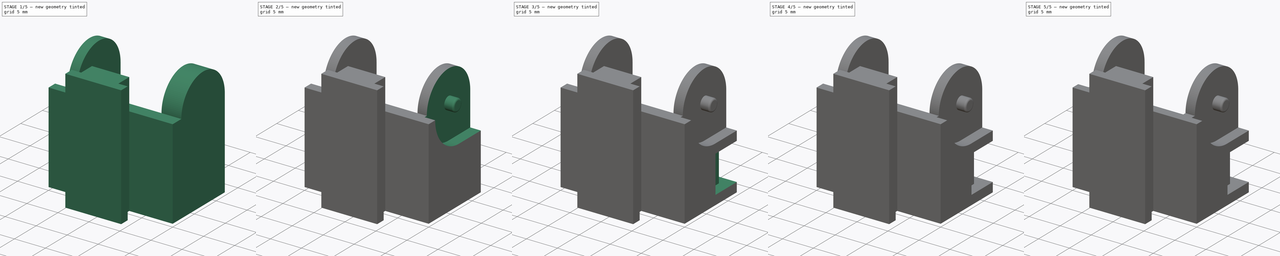
[diagram: build sequence overview — one tinted view per stage of 5, left to right]
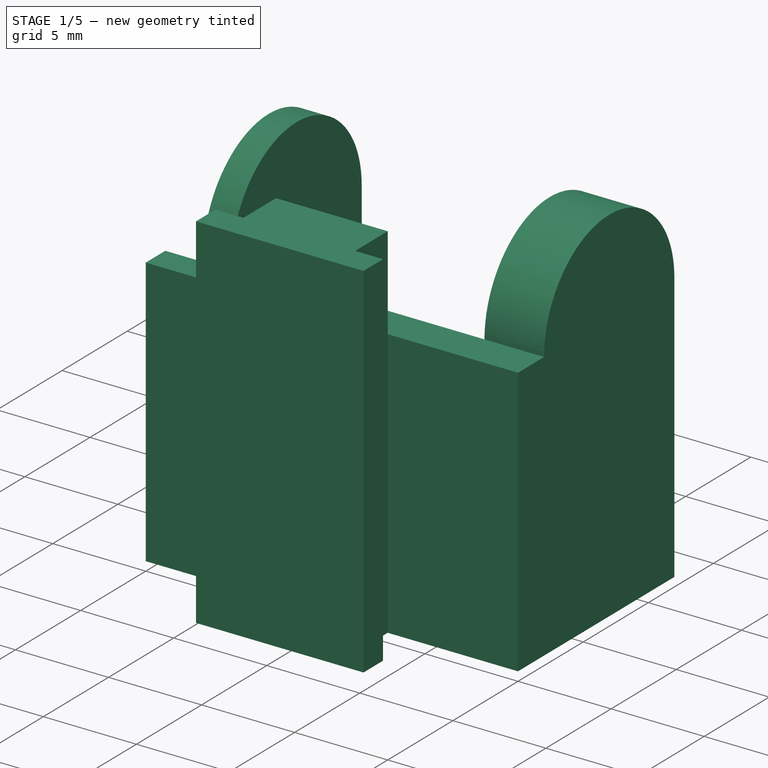
[diagram: stage 1 of 5 — iso view after this stage's code; geometry added in this stage tinted green]
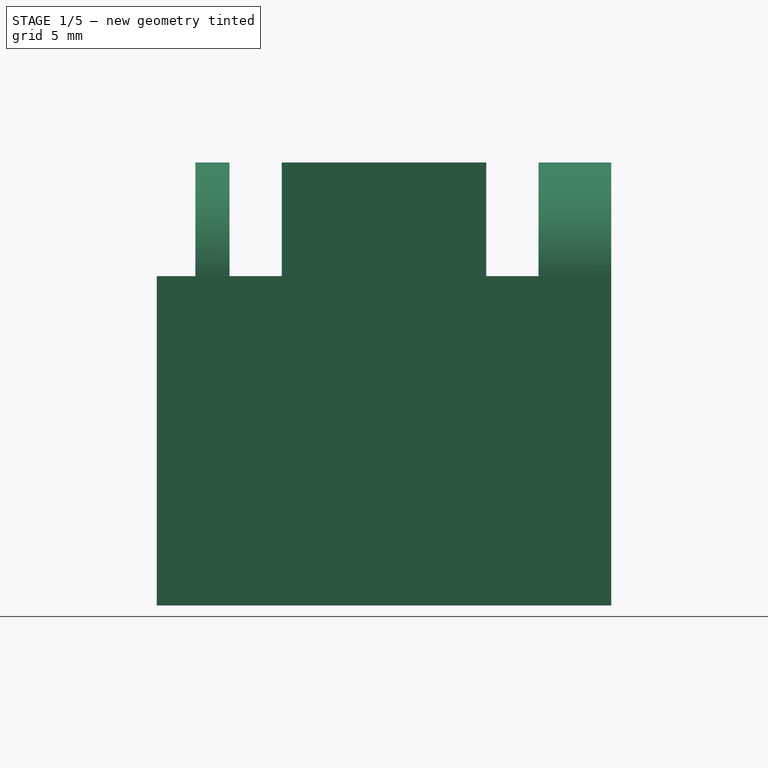
[diagram: stage 1 of 5 — front view after this stage's code; geometry added in this stage tinted green]
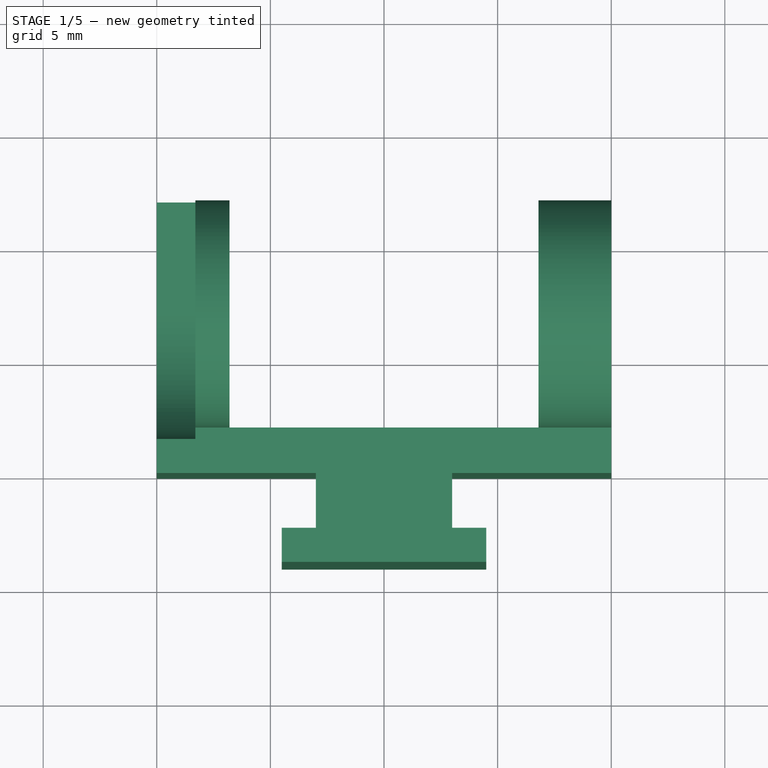
[diagram: stage 1 of 5 — top view after this stage's code; geometry added in this stage tinted green]
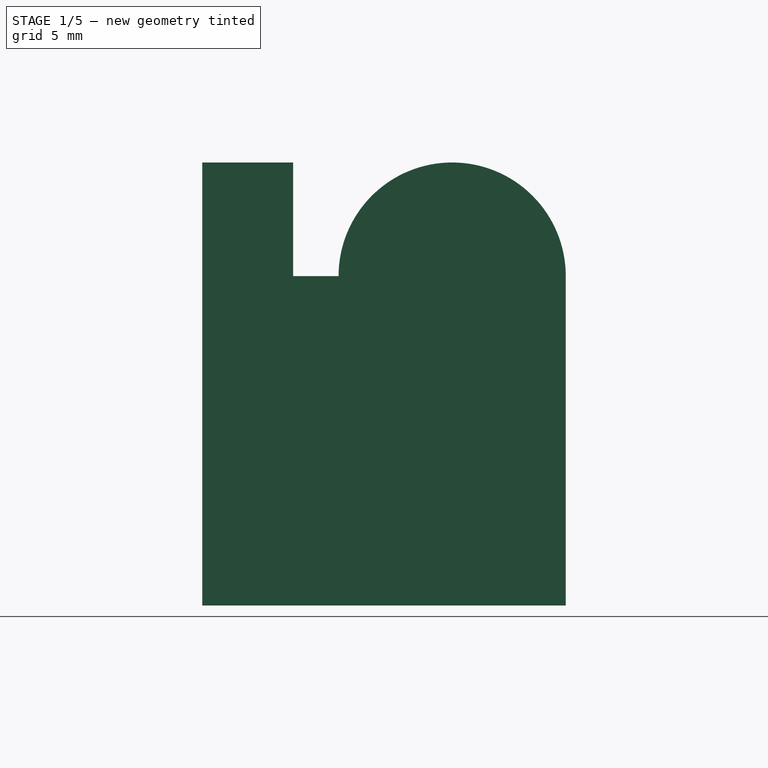
[diagram: stage 1 of 5 — right view after this stage's code; geometry added in this stage tinted green]
FCSTD DOCUMENT  (FreeCAD 0.17R13541 (Git))
Label: CableCareerNozzleFooter
License: All rights reserved
LicenseURL: http://en.wikipedia.org/wiki/All_rights_reserved
objects: Sketcher::SketchObject×11, PartDesign::Fillet×9, PartDesign::Pocket×8, PartDesign::Pad×3, PartDesign::Body×1
note: 43 computed .brp shape members not serialized (recipe doc carries the construction recipe); baked Part::Feature solids carry a one-line shape summary decoded from their .brp

FEATURE [Sketcher::SketchObject] Sketch
  MapMode = 5
  Support = -> [XY_Plane]
  sketch-geometry (12):
    g0: LineSegment StartX=-3 StartY=0 StartZ=0 EndX=-3 EndY=-2.5 EndZ=0
    g1: LineSegment StartX=-3 StartY=-2.5 StartZ=0 EndX=-4.5 EndY=-2.5 EndZ=0
    g2: LineSegment StartX=-4.5 StartY=-2.5 StartZ=0 EndX=-4.5 EndY=-4 EndZ=0
    g3: LineSegment StartX=-4.5 StartY=-4 StartZ=0 EndX=4.5 EndY=-4 EndZ=0
    g4: LineSegment StartX=4.5 StartY=-4 StartZ=0 EndX=4.5 EndY=-2.5 EndZ=0
    g5: LineSegment StartX=4.5 StartY=-2.5 StartZ=0 EndX=3 EndY=-2.5 EndZ=0
    g6: LineSegment StartX=3 StartY=-2.5 StartZ=0 EndX=3 EndY=0 EndZ=0
    g7: LineSegment StartX=3 StartY=0 StartZ=0 EndX=10 EndY=0 EndZ=0
    g8: LineSegment StartX=10 StartY=0 StartZ=0 EndX=10 EndY=12 EndZ=0
    g9: LineSegment StartX=10 StartY=12 StartZ=0 EndX=-10 EndY=12 EndZ=0
    g10: LineSegment StartX=-10 StartY=12 StartZ=0 EndX=-10 EndY=0 EndZ=0
    g11: LineSegment StartX=-10 StartY=0 StartZ=0 EndX=-3 EndY=0 EndZ=0
  constraints (36):
    c: Coincident(g0,g1)
    c: Coincident(g1,g2)
    c: Coincident(g2,g3)
    c: Coincident(g3,g4)
    c: Coincident(g4,g5)
    c: Coincident(g5,g6)
    c: Coincident(g6,g7)
    c: Coincident(g7,g8)
    c: Coincident(g8,g9)
    c: Coincident(g9,g10)
    c: Coincident(g10,g11)
    c: Coincident(g11,g0)
    c: Vertical(g10)
    c: Vertical(g8)
    c: Vertical(g6)
    c: Vertical(g0)
    c: Vertical(g2)
    c: Vertical(g4)
    c: Horizontal(g9)
    c: Horizontal(g11)
    c: Horizontal(g1)
    c: Horizontal(g3)
    c: Horizontal(g5)
    c: Horizontal(g7)
    c: PointOnObject(g0,g-1)
    c: PointOnObject(g6,g-1)
    c: DistanceX(g0,g6) = 6
    c: DistanceX(g11,g11) = 7
    c: DistanceX(g7,g7) = 7
    c: DistanceY(g10,g10) = 12
    c: DistanceY(g0,g0) = 2.5
    c: DistanceY(g6,g6) = 2.5
    c: DistanceX(g1,g1) = 1.5
    c: DistanceX(g5,g5) = 1.5
    c: DistanceY(g4,g4) = 1.5
    c: DistanceX(g0,g-1) = 3
FEATURE [PartDesign::Pad] Pad
  Length = 19.5
  Length2 = 100
  Profile = -> Sketch
  Type = 0
FEATURE [Sketcher::SketchObject] Sketch001
  ExternalGeometry = -> [Pad]
  MapMode = 5
  Placement = pos=(0,12,0) rot=(0,0.707107,0.707107;3.14159rad)
  Support = -> [Pad]
  sketch-geometry (4):
    g0: LineSegment StartX=-6.8 StartY=19.5 StartZ=0 EndX=6.8 EndY=19.5 EndZ=0
    g1: LineSegment StartX=6.8 StartY=19.5 StartZ=0 EndX=6.8 EndY=0 EndZ=0
    g2: LineSegment StartX=6.8 StartY=0 StartZ=0 EndX=-6.8 EndY=0 EndZ=0
    g3: LineSegment StartX=-6.8 StartY=0 StartZ=0 EndX=-6.8 EndY=19.5 EndZ=0
  constraints (12):
    c: Coincident(g0,g1)
    c: Coincident(g1,g2)
    c: Coincident(g2,g3)
    c: Coincident(g3,g0)
    c: Horizontal(g0)
    c: Horizontal(g2)
    c: Vertical(g1)
    c: Vertical(g3)
    c: PointOnObject(g0,g-3)
    c: PointOnObject(g1,g-4)
    c: DistanceX(g-3,g0) = 3.2
    c: DistanceX(g0,g-3) = 3.2
FEATURE [PartDesign::Pocket] Pocket
  BaseFeature = -> Pad
  Length = 10
  Length2 = 100
  Profile = -> Sketch001
  Type = 0
FEATURE [Sketcher::SketchObject] Sketch002
  ExternalGeometry = -> [Pocket]
  MapMode = 5
  Placement = pos=(-10,0,0) rot=(0.57735,-0.57735,-0.57735;2.0944rad)
  Support = -> [Pocket]
  sketch-geometry (5):
    g0: ArcOfCircle CenterX=-7 CenterY=14.5 CenterZ=0 NormalX=0 NormalY=0 NormalZ=1 AngleXU=0 Radius=5 StartAngle=4.74424e-06 EndAngle=3.1416
    g1: LineSegment StartX=-12 StartY=14.5 StartZ=0 EndX=-12 EndY=20.5 EndZ=0
    g2: LineSegment StartX=-12 StartY=20.5 StartZ=0 EndX=0 EndY=20.5 EndZ=0
    g3: LineSegment StartX=0 StartY=20.5 StartZ=0 EndX=0 EndY=14.5 EndZ=0
    g4: LineSegment StartX=0 StartY=14.5 StartZ=0 EndX=-2 EndY=14.5 EndZ=0
  constraints (16):
    c: DistanceX(g-4,g0) = 5
    c: DistanceY(g0,g-4) = 5
    c: Tangent(g0,g-3)
    c: PointOnObject(g0,g-4)
    c: Angle(g0) = 3.14159
    c: Coincident(g1,g2)
    c: Coincident(g2,g3)
    c: Coincident(g3,g4)
    c: Coincident(g0,g4)
    c: Coincident(g1,g0)
    c: Vertical(g1)
    c: Vertical(g3)
    c: Horizontal(g4)
    c: Horizontal(g2)
    c: DistanceY(g-6,g2) = 1
    c: PointOnObject(g3,g-2)
FEATURE [PartDesign::Pocket] Pocket001
  BaseFeature = -> Pocket
  Length = 20
  Length2 = 100
  Profile = -> Sketch002
  Type = 0
FEATURE [Sketcher::SketchObject] Sketch003
  ExternalGeometry = -> [Pocket001]
  MapMode = 5
  Placement = pos=(-10,0,0) rot=(0.57735,-0.57735,-0.57735;2.0944rad)
  Support = -> [Pocket001]
  sketch-geometry (3):
    g0: ArcOfCircle CenterX=-7 CenterY=14.5 CenterZ=0 NormalX=0 NormalY=0 NormalZ=1 AngleXU=0 Radius=5.5 StartAngle=4.71239 EndAngle=9.42478
    g1: LineSegment StartX=-12.5 StartY=14.5 StartZ=0 EndX=-12.5 EndY=9 EndZ=0
    g2: LineSegment StartX=-12.5 StartY=9 StartZ=0 EndX=-6.99998 EndY=9 EndZ=0
  constraints (9):
    c: Coincident(g0,g-3)
    c: Radius(g0) = 5.5
    c: DistanceY(g0,g-3) = 0
    c: Angle(g0) = 4.71239
    c: Coincident(g1,g2)
    c: Coincident(g2,g0)
    c: Coincident(g1,g0)
    c: Vertical(g1)
    c: Horizontal(g2)
FEATURE [PartDesign::Pocket] Pocket002
  BaseFeature = -> Pocket001
  Length = 1.7
  Length2 = 100
  Profile = -> Sketch003
  Type = 0
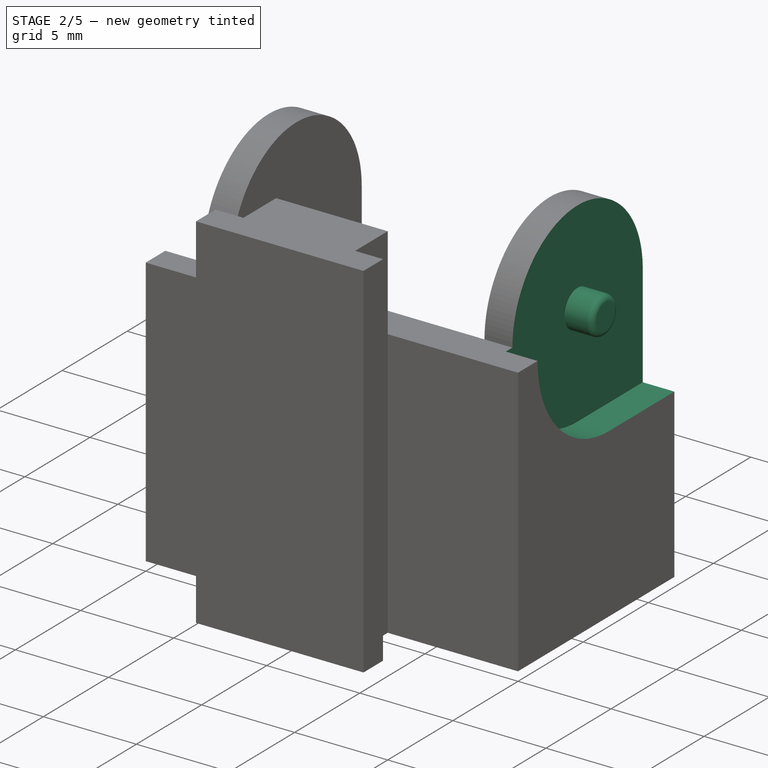
[diagram: stage 2 of 5 — iso view after this stage's code; geometry added in this stage tinted green]
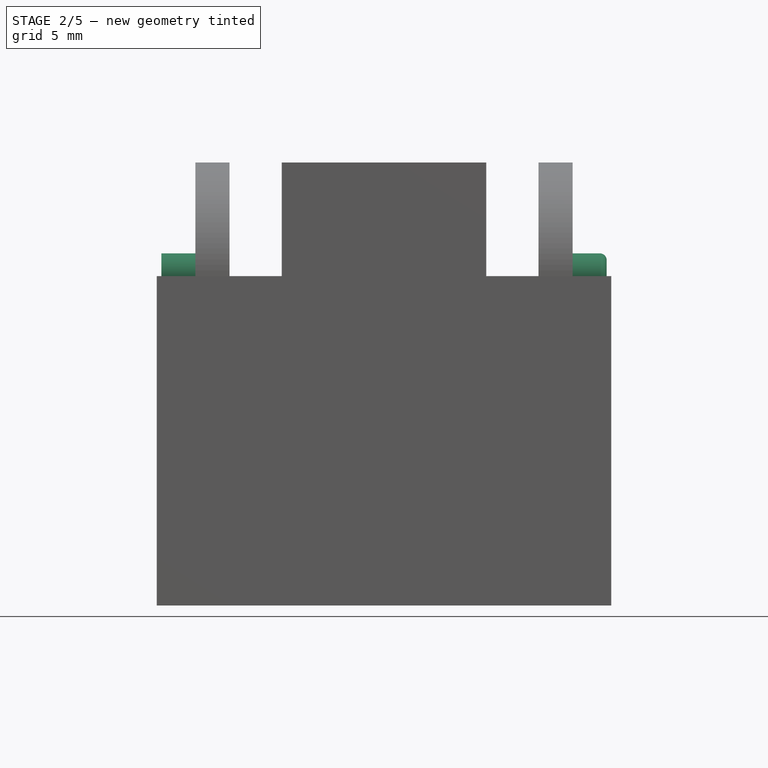
[diagram: stage 2 of 5 — front view after this stage's code; geometry added in this stage tinted green]
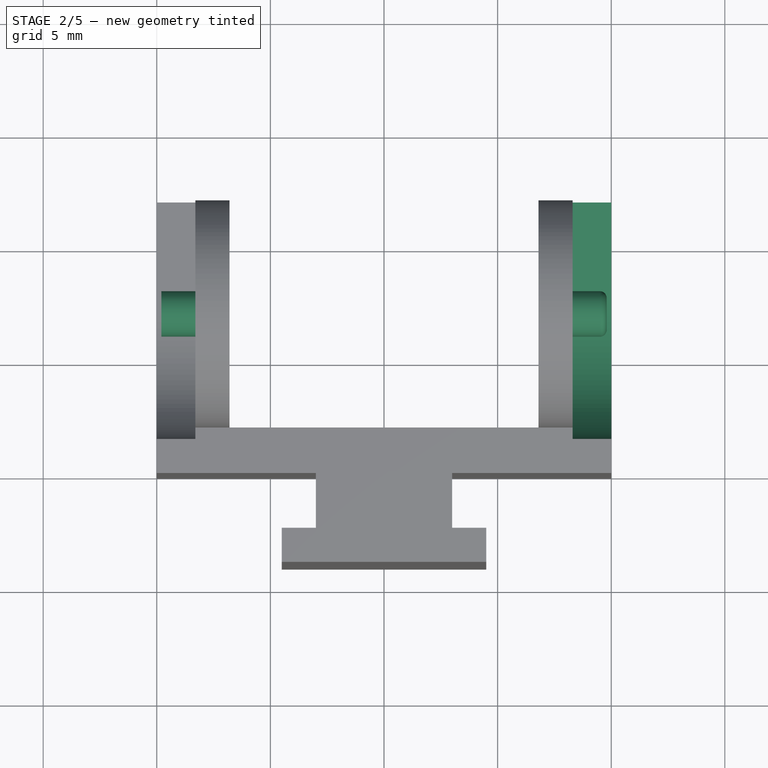
[diagram: stage 2 of 5 — top view after this stage's code; geometry added in this stage tinted green]
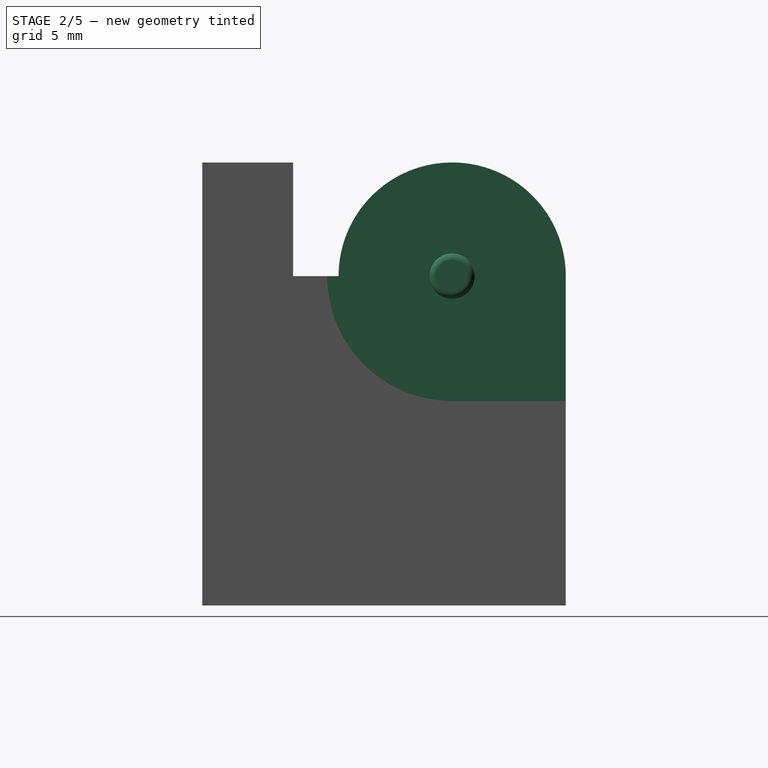
[diagram: stage 2 of 5 — right view after this stage's code; geometry added in this stage tinted green]
FEATURE [Sketcher::SketchObject] Sketch004
  ExternalGeometry = -> [Pocket002]
  MapMode = 5
  Placement = pos=(10,0,0) rot=(0.57735,0.57735,0.57735;2.0944rad)
  Support = -> [Pocket002]
  sketch-geometry (3):
    g0: ArcOfCircle CenterX=7 CenterY=14.5 CenterZ=0 NormalX=0 NormalY=0 NormalZ=1 AngleXU=0 Radius=5.5 StartAngle=6.28318 EndAngle=10.9956
    g1: LineSegment StartX=12.5 StartY=14.5 StartZ=0 EndX=12.5 EndY=9 EndZ=0
    g2: LineSegment StartX=12.5 StartY=9 StartZ=0 EndX=6.99998 EndY=9 EndZ=0
  constraints (9):
    c: Coincident(g0,g-3)
    c: Radius(g0) = 5.5
    c: Angle(g0) = 4.71239
    c: DistanceY(g0,g-4) = 0
    c: Coincident(g1,g2)
    c: Coincident(g2,g0)
    c: Coincident(g1,g0)
    c: Vertical(g1)
    c: Horizontal(g2)
FEATURE [PartDesign::Pocket] Pocket003
  BaseFeature = -> Pocket002
  Length = 1.7
  Length2 = 100
  Profile = -> Sketch004
  Type = 0
FEATURE [Sketcher::SketchObject] Sketch005
  ExternalGeometry = -> [Pocket003]
  MapMode = 5
  Placement = pos=(8.3,0,0) rot=(0.57735,0.57735,0.57735;2.0944rad)
  Support = -> [Pocket003]
  sketch-geometry (1):
    g0: Circle CenterX=7 CenterY=14.5 CenterZ=0 NormalX=0 NormalY=0 NormalZ=1 AngleXU=0 Radius=1
  constraints (2):
    c: Coincident(g0,g-3)
    c: Radius(g0) = 1
FEATURE [PartDesign::Pad] Pad001
  BaseFeature = -> Pocket003
  Length = 1.5
  Length2 = 100
  Profile = -> Sketch005
  Type = 0
FEATURE [PartDesign::Fillet] Fillet
  Base = -> Pad001 [Edge83]
  BaseFeature = -> Pad001
  Radius = 0.3
FEATURE [Sketcher::SketchObject] Sketch006
  ExternalGeometry = -> [Fillet]
  MapMode = 5
  Placement = pos=(-8.3,0,0) rot=(-0.57735,0.57735,0.57735;4.18879rad)
  Support = -> [Fillet]
  sketch-geometry (1):
    g0: Circle CenterX=-7 CenterY=14.5 CenterZ=0 NormalX=0 NormalY=0 NormalZ=1 AngleXU=0 Radius=1
  constraints (2):
    c: Coincident(g0,g-3)
    c: Radius(g0) = 1
FEATURE [PartDesign::Pad] Pad002
  BaseFeature = -> Fillet
  Length = 1.5
  Length2 = 100
  Profile = -> Sketch006
  Type = 0
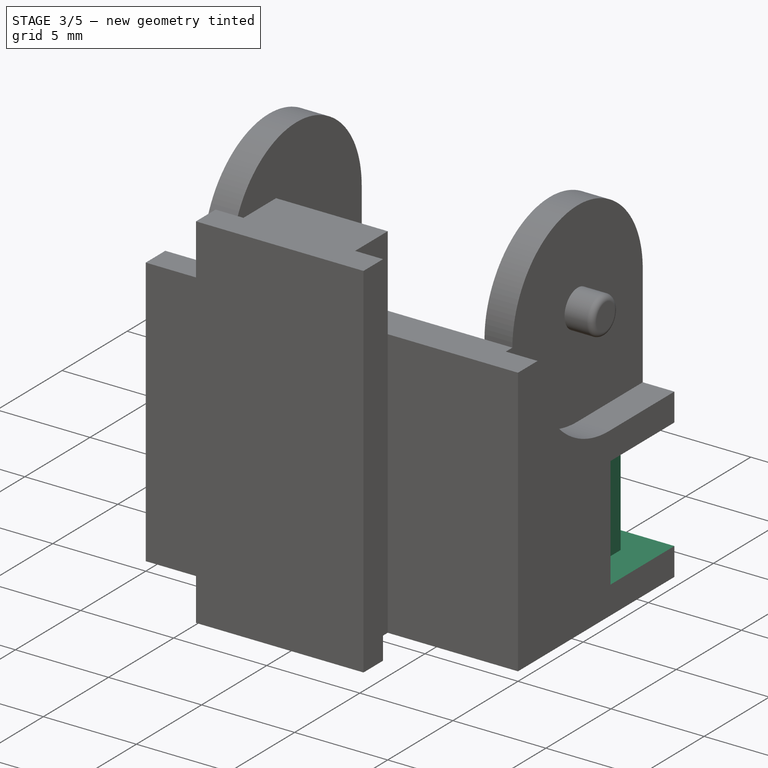
[diagram: stage 3 of 5 — iso view after this stage's code; geometry added in this stage tinted green]
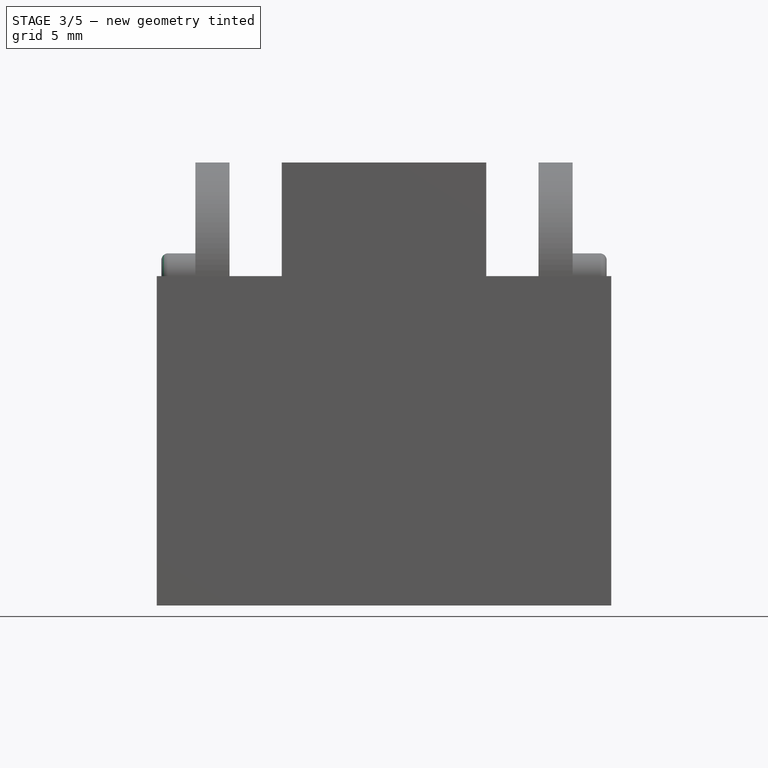
[diagram: stage 3 of 5 — front view after this stage's code; geometry added in this stage tinted green]
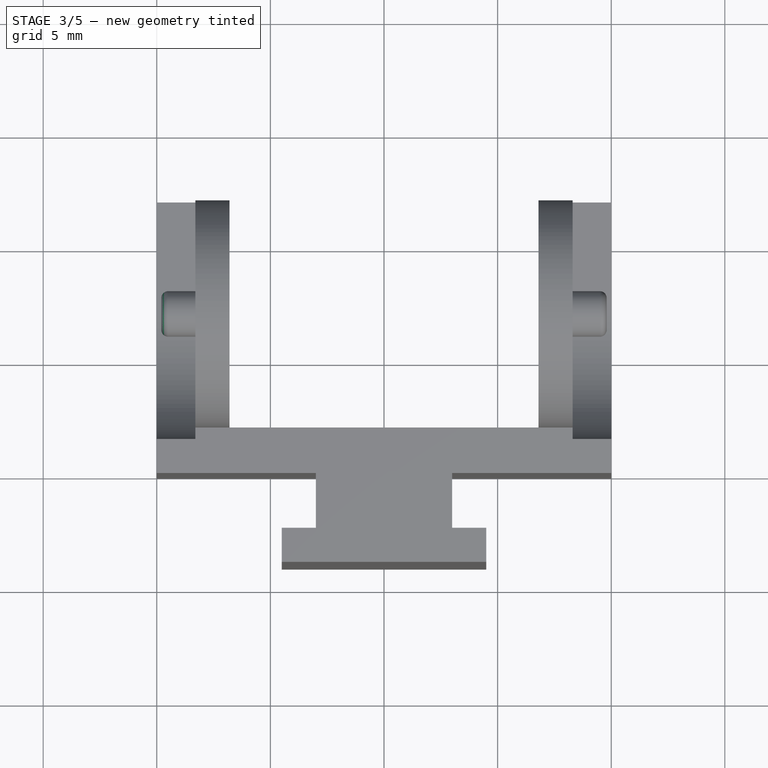
[diagram: stage 3 of 5 — top view after this stage's code; geometry added in this stage tinted green]
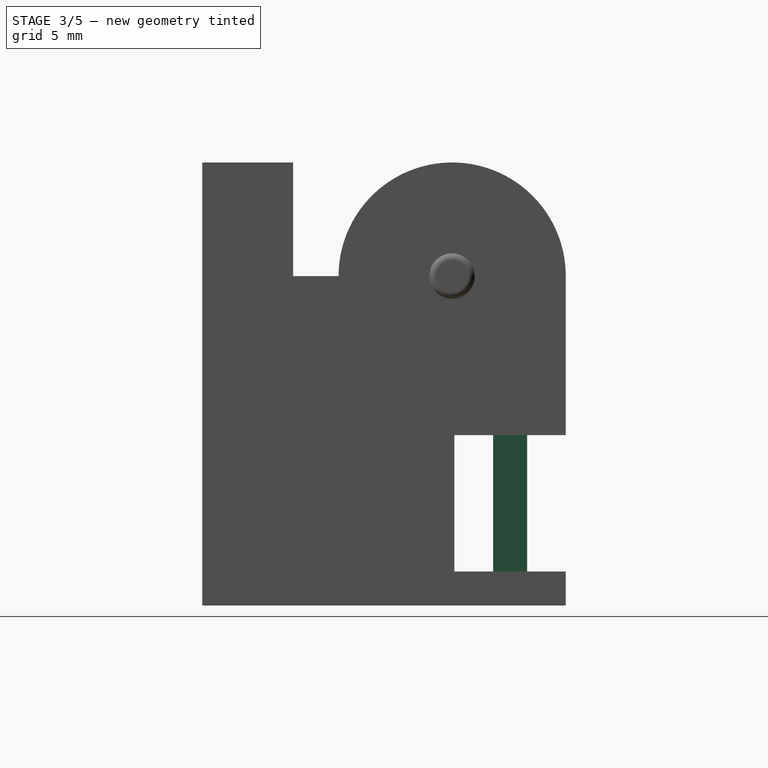
[diagram: stage 3 of 5 — right view after this stage's code; geometry added in this stage tinted green]
FEATURE [PartDesign::Fillet] Fillet001
  Base = -> Pad002 [Edge75]
  BaseFeature = -> Pad002
  Radius = 0.3
FEATURE [Sketcher::SketchObject] Sketch007
  ExternalGeometry = -> [Fillet001]
  MapMode = 5
  Placement = pos=(10,0,0) rot=(0.57735,0.57735,0.57735;2.0944rad)
  Support = -> [Fillet001]
  sketch-geometry (4):
    g0: LineSegment StartX=10.3 StartY=7.5 StartZ=0 EndX=12 EndY=7.5 EndZ=0
    g1: LineSegment StartX=12 StartY=7.5 StartZ=0 EndX=12 EndY=1.5 EndZ=0
    g2: LineSegment StartX=12 StartY=1.5 StartZ=0 EndX=10.3 EndY=1.5 EndZ=0
    g3: LineSegment StartX=10.3 StartY=1.5 StartZ=0 EndX=10.3 EndY=7.5 EndZ=0
  constraints (12):
    c: Coincident(g0,g1)
    c: Coincident(g1,g2)
    c: Coincident(g2,g3)
    c: Coincident(g3,g0)
    c: Horizontal(g0)
    c: Horizontal(g2)
    c: Vertical(g1)
    c: Vertical(g3)
    c: PointOnObject(g0,g-3)
    c: DistanceY(g0,g-3) = 1.5
    c: DistanceY(g-3,g1) = 1.5
    c: DistanceX(g2,g2) = 1.7
FEATURE [PartDesign::Pocket] Pocket004
  BaseFeature = -> Fillet001
  Length = 20
  Length2 = 100
  Profile = -> Sketch007
  Type = 0
FEATURE [Sketcher::SketchObject] Sketch008
  ExternalGeometry = -> [Pocket004]
  MapMode = 5
  Placement = pos=(10,0,0) rot=(0.57735,0.57735,0.57735;2.0944rad)
  Support = -> [Pocket004]
  sketch-geometry (4):
    g0: LineSegment StartX=7.1 StartY=7.5 StartZ=0 EndX=8.8 EndY=7.5 EndZ=0
    g1: LineSegment StartX=8.8 StartY=7.5 StartZ=0 EndX=8.8 EndY=1.5 EndZ=0
    g2: LineSegment StartX=8.8 StartY=1.5 StartZ=0 EndX=7.1 EndY=1.5 EndZ=0
    g3: LineSegment StartX=7.1 StartY=1.5 StartZ=0 EndX=7.1 EndY=7.5 EndZ=0
  constraints (12):
    c: Coincident(g0,g1)
    c: Coincident(g1,g2)
    c: Coincident(g2,g3)
    c: Coincident(g3,g0)
    c: Horizontal(g0)
    c: Horizontal(g2)
    c: Vertical(g1)
    c: Vertical(g3)
    c: DistanceX(g0,g-3) = 1.5
    c: DistanceY(g-3,g1) = 0
    c: DistanceY(g0,g-3) = 0
    c: DistanceX(g0,g0) = 1.7
FEATURE [PartDesign::Pocket] Pocket005
  BaseFeature = -> Pocket004
  Length = 20
  Length2 = 100
  Profile = -> Sketch008
  Type = 0
FEATURE [Sketcher::SketchObject] Sketch009
  ExternalGeometry = -> [Pocket005]
  MapMode = 5
  Placement = pos=(10,0,0) rot=(0.57735,0.57735,0.57735;2.0944rad)
  Support = -> [Pocket005]
  sketch-geometry (4):
    g0: LineSegment StartX=8.8 StartY=7.5 StartZ=0 EndX=10.3 EndY=7.5 EndZ=0
    g1: LineSegment StartX=10.3 StartY=7.5 StartZ=0 EndX=10.3 EndY=1.5 EndZ=0
    g2: LineSegment StartX=10.3 StartY=1.5 StartZ=0 EndX=8.8 EndY=1.5 EndZ=0
    g3: LineSegment StartX=8.8 StartY=1.5 StartZ=0 EndX=8.8 EndY=7.5 EndZ=0
  constraints (10):
    c: Coincident(g0,g1)
    c: Coincident(g1,g2)
    c: Coincident(g2,g3)
    c: Coincident(g3,g0)
    c: Horizontal(g0)
    c: Horizontal(g2)
    c: Vertical(g1)
    c: Vertical(g3)
    c: Coincident(g1,g-4)
    c: Coincident(g-3,g0)
FEATURE [PartDesign::Pocket] Pocket006
  BaseFeature = -> Pocket005
  Length = 1.7
  Length2 = 100
  Profile = -> Sketch009
  Type = 0
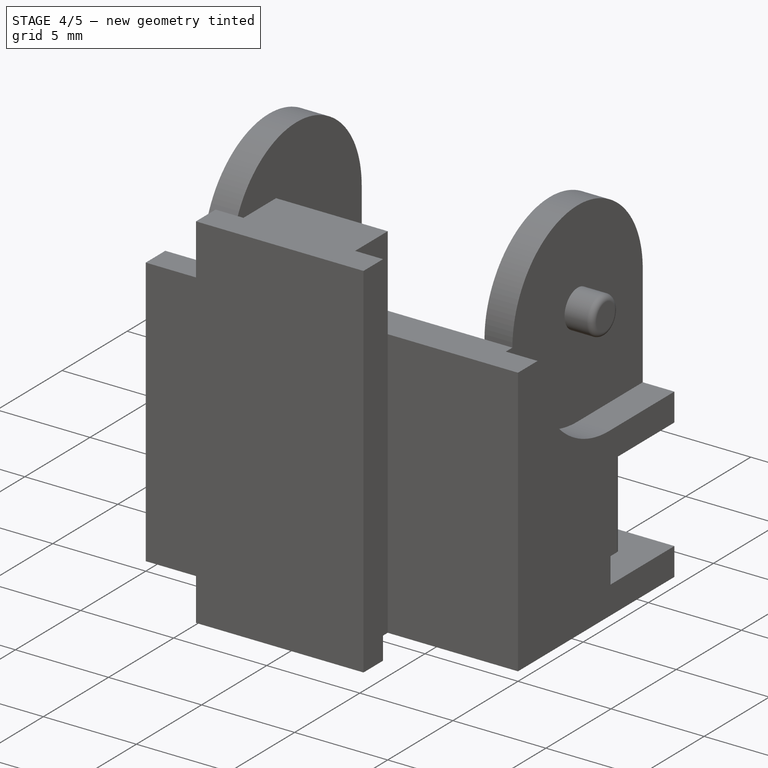
[diagram: stage 4 of 5 — iso view after this stage's code; geometry added in this stage tinted green]
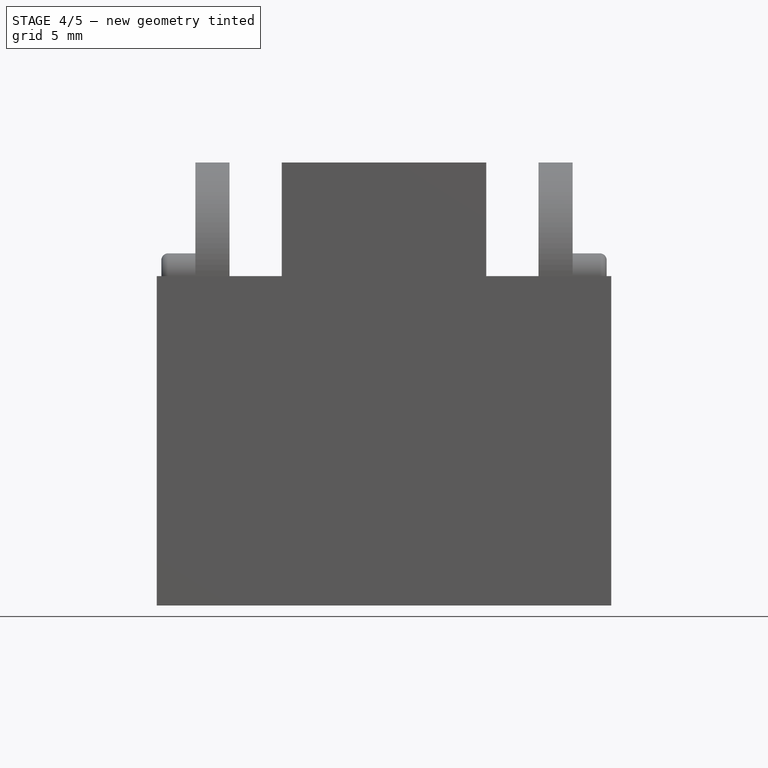
[diagram: stage 4 of 5 — front view after this stage's code; geometry added in this stage tinted green]
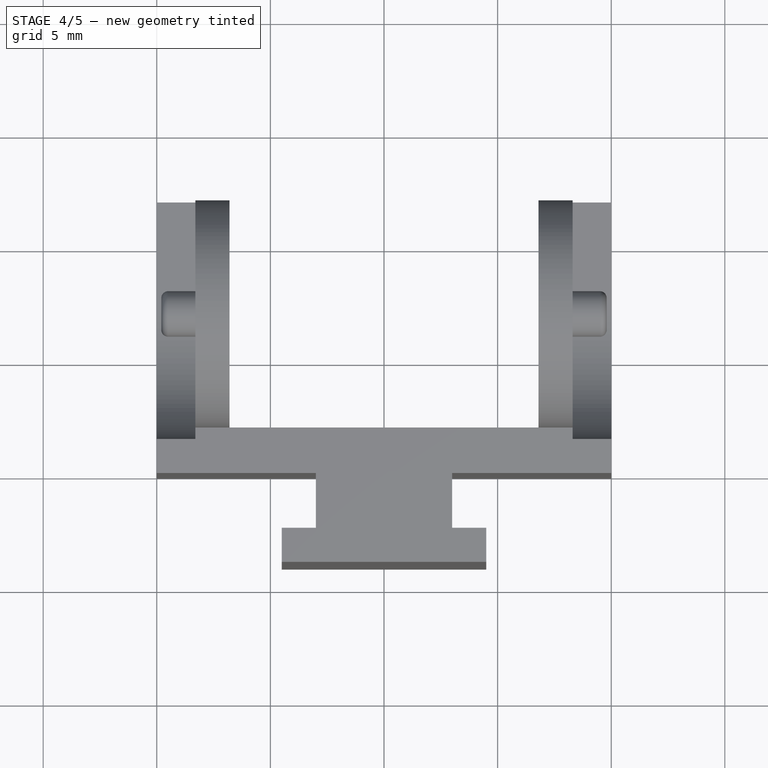
[diagram: stage 4 of 5 — top view after this stage's code; geometry added in this stage tinted green]
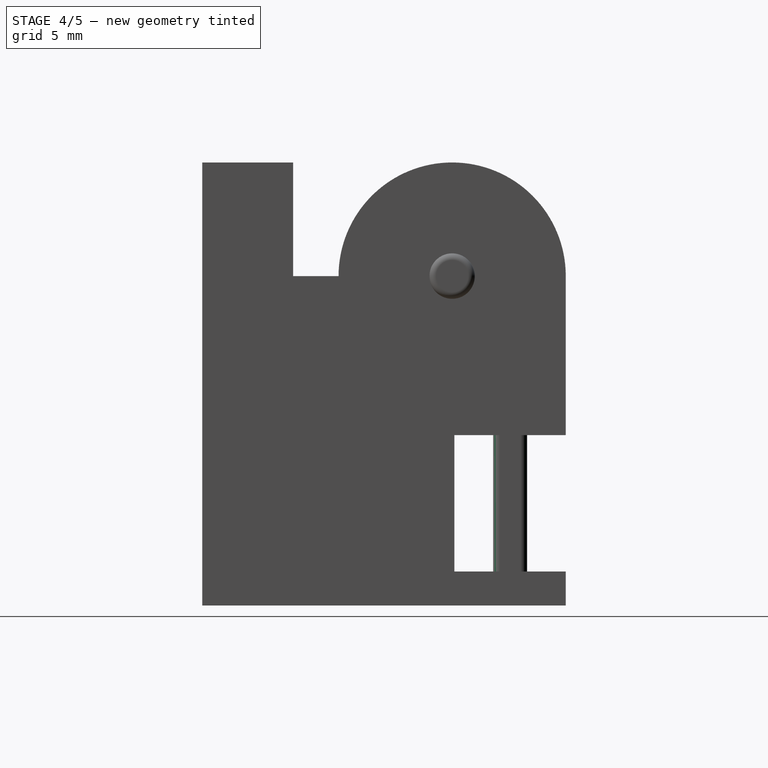
[diagram: stage 4 of 5 — right view after this stage's code; geometry added in this stage tinted green]
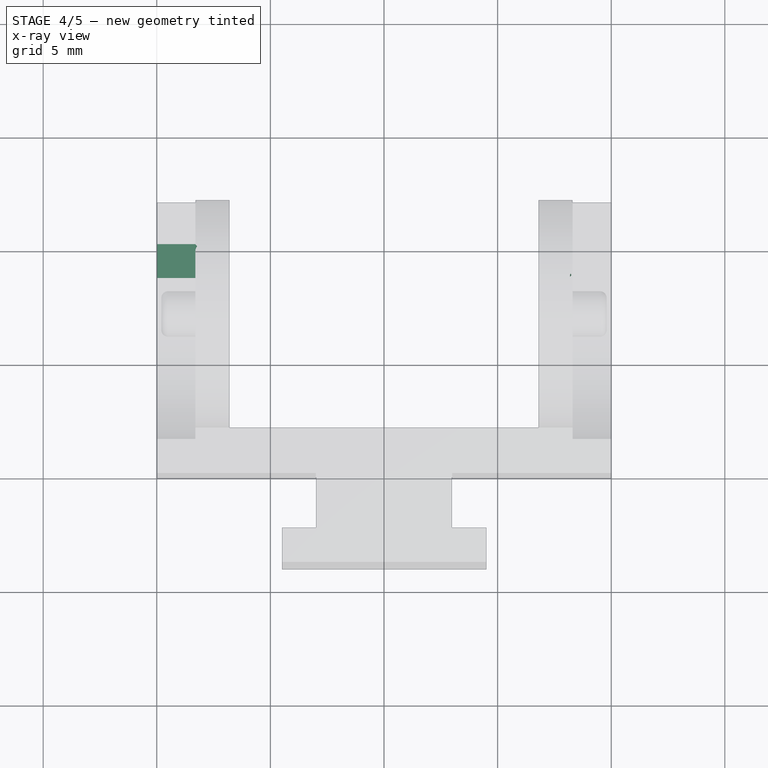
[diagram: stage 4 of 5 — x-ray composite at the top view; earlier geometry ghosted, this stage's added geometry solid]
FEATURE [PartDesign::Fillet] Fillet002
  Base = -> Pocket006 [Edge143]
  BaseFeature = -> Pocket006
  Radius = 0.3
FEATURE [PartDesign::Fillet] Fillet003
  Base = -> Fillet002 [Edge44]
  BaseFeature = -> Fillet002
  Radius = 0.3
FEATURE [Sketcher::SketchObject] Sketch010
  ExternalGeometry = -> [Fillet003]
  MapMode = 5
  Placement = pos=(-10,0,0) rot=(0.57735,-0.57735,-0.57735;2.0944rad)
  Support = -> [Fillet003]
  sketch-geometry (4):
    g0: LineSegment StartX=-10.3 StartY=7.5 StartZ=0 EndX=-8.8 EndY=7.5 EndZ=0
    g1: LineSegment StartX=-8.8 StartY=7.5 StartZ=0 EndX=-8.8 EndY=1.5 EndZ=0
    g2: LineSegment StartX=-8.8 StartY=1.5 StartZ=0 EndX=-10.3 EndY=1.5 EndZ=0
    g3: LineSegment StartX=-10.3 StartY=1.5 StartZ=0 EndX=-10.3 EndY=7.5 EndZ=0
  constraints (10):
    c: Coincident(g0,g1)
    c: Coincident(g1,g2)
    c: Coincident(g2,g3)
    c: Coincident(g3,g0)
    c: Horizontal(g0)
    c: Horizontal(g2)
    c: Vertical(g1)
    c: Vertical(g3)
    c: Coincident(g0,g-3)
    c: Coincident(g1,g-4)
FEATURE [PartDesign::Pocket] Pocket007
  BaseFeature = -> Fillet003
  Length = 1.7
  Length2 = 100
  Profile = -> Sketch010
  Type = 0
FEATURE [PartDesign::Fillet] Fillet004
  Base = -> Pocket007 [Edge155]
  BaseFeature = -> Pocket007
  Radius = 0.3
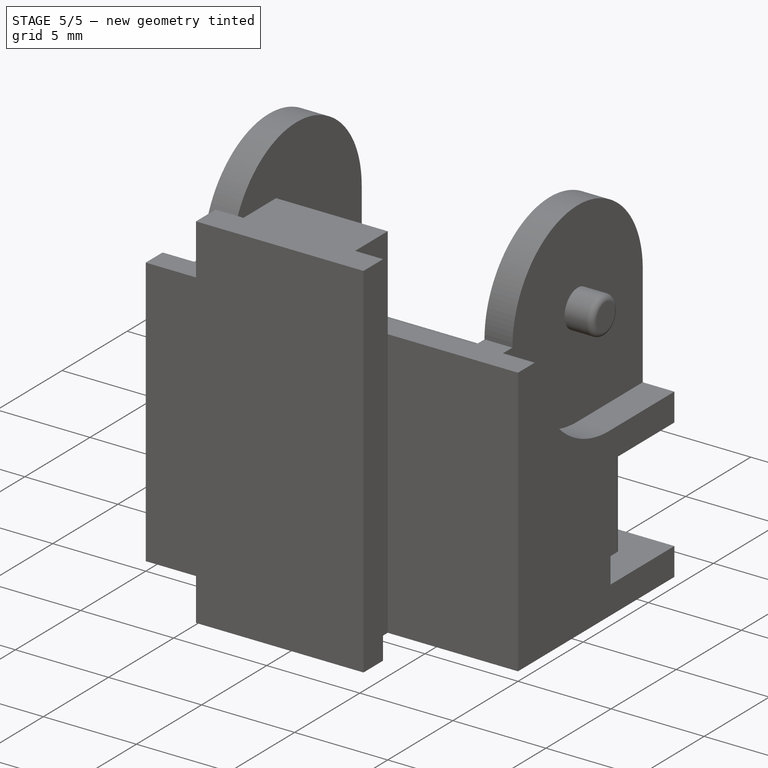
[diagram: stage 5 of 5 — iso view after this stage's code; geometry added in this stage tinted green]
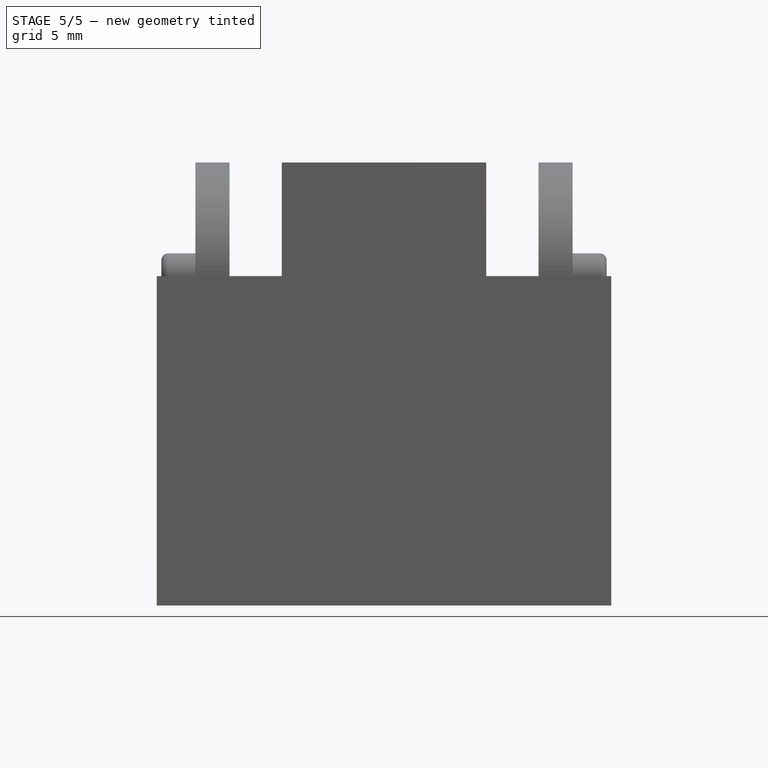
[diagram: stage 5 of 5 — front view after this stage's code; geometry added in this stage tinted green]
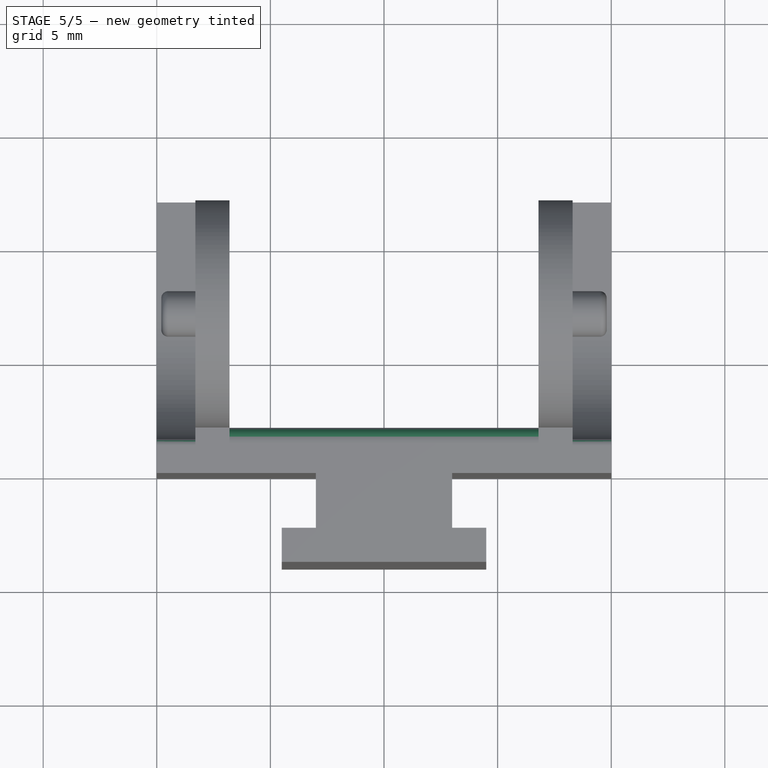
[diagram: stage 5 of 5 — top view after this stage's code; geometry added in this stage tinted green]
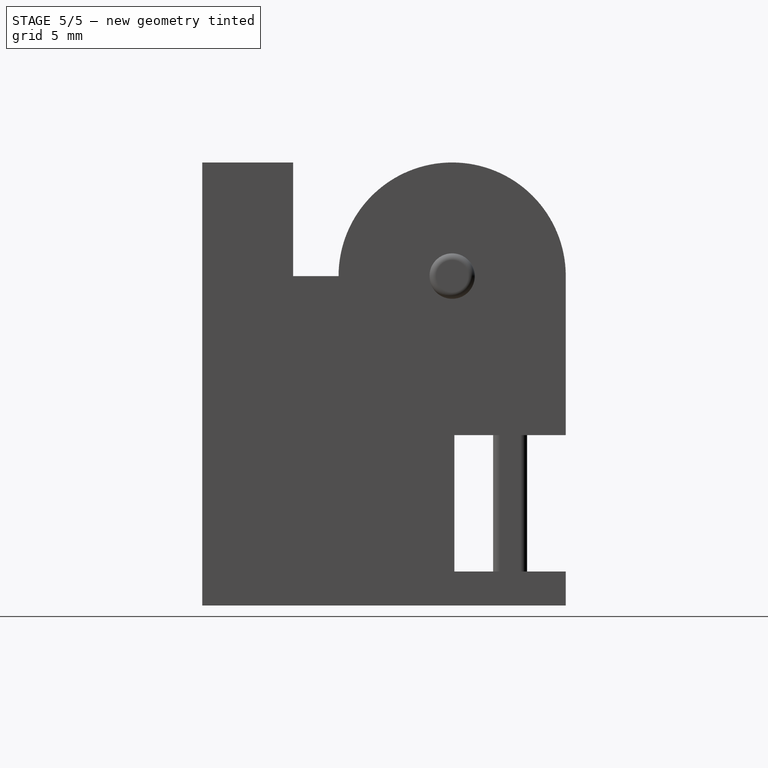
[diagram: stage 5 of 5 — right view after this stage's code; geometry added in this stage tinted green]
FEATURE [PartDesign::Fillet] Fillet005
  Base = -> Fillet004 [Edge45]
  BaseFeature = -> Fillet004
  Radius = 0.3
FEATURE [PartDesign::Fillet] Fillet006
  Base = -> Fillet005 [Edge72]
  BaseFeature = -> Fillet005
  Radius = 0.3
FEATURE [PartDesign::Fillet] Fillet007
  Base = -> Fillet006 [Edge25]
  BaseFeature = -> Fillet006
  Radius = 0.3
FEATURE [PartDesign::Fillet] Fillet008
  Base = -> Fillet007 [Edge10]
  BaseFeature = -> Fillet007
  Radius = 0.7
FEATURE [PartDesign::Body] Body
  Group = -> [Sketch,Pad,Sketch001,Pocket,Sketch002,Pocket001,Sketch003,Pocket002,Sketch004,Pocket003,Sketch005,Pad001,Fillet,Sketch006,Pad002,Fillet001,Sketch007,Pocket004,Sketch008,Pocket005,Sketch009,Pocket006,Fillet002,Fillet003,Sketch010,Pocket007,Fillet004,Fillet005,Fillet006,Fillet007,Fillet008]
  Origin = -> Origin
  Tip = -> Fillet008
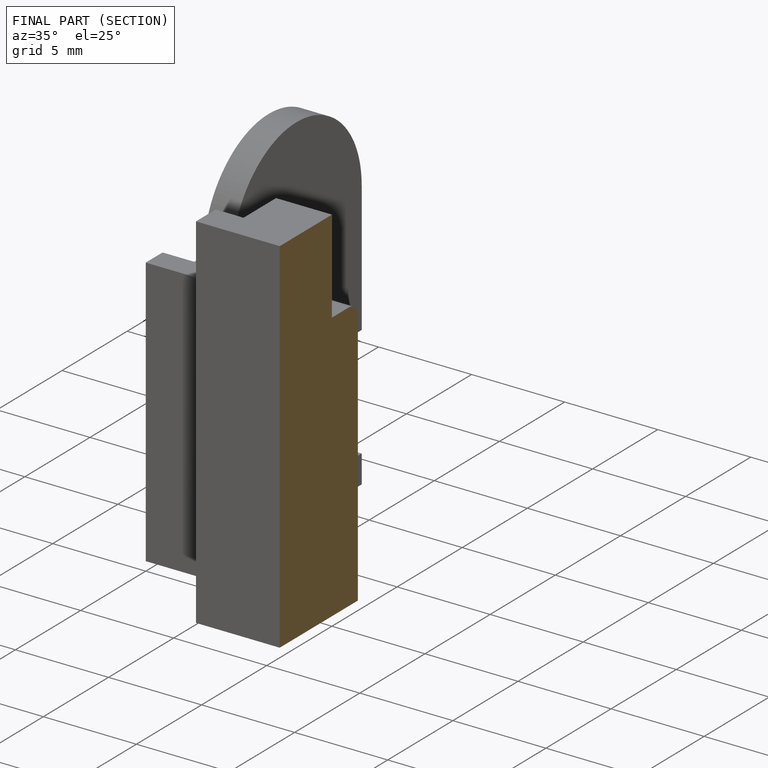
[diagram: finished part — half-section view (interior)]
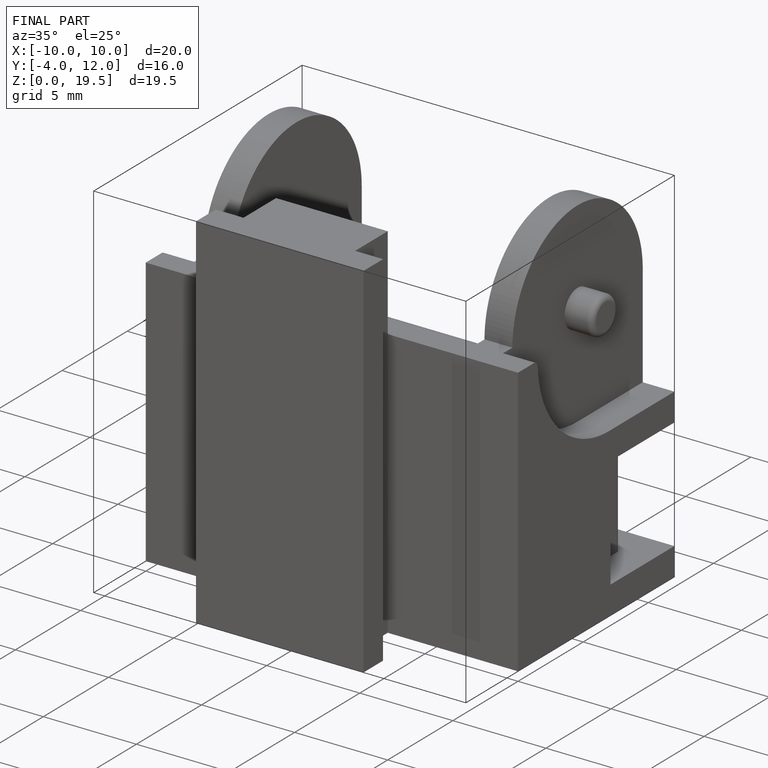
[diagram: finished part — iso view with bounding-box wireframe]
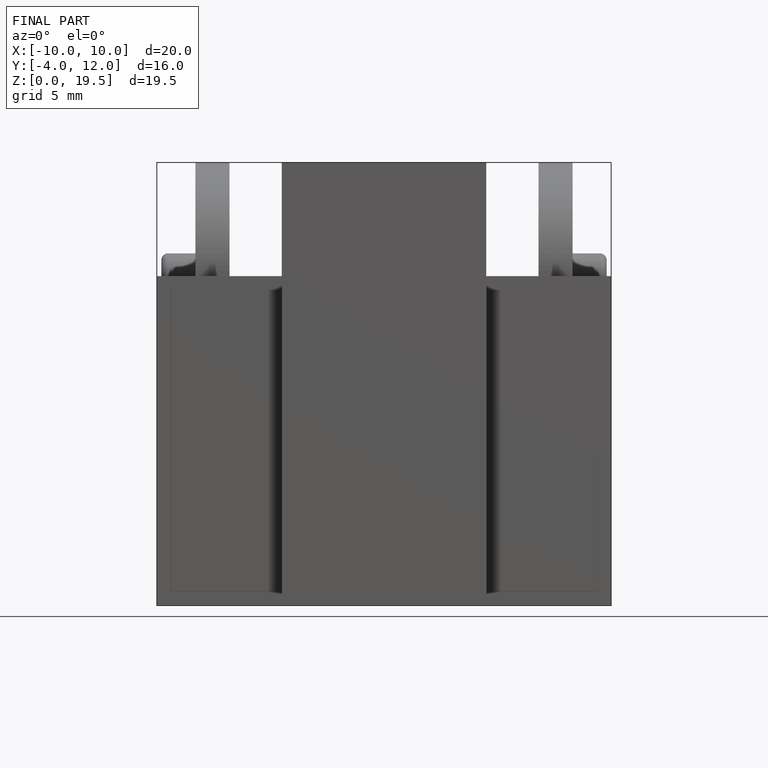
[diagram: finished part — front view with bounding-box wireframe]
